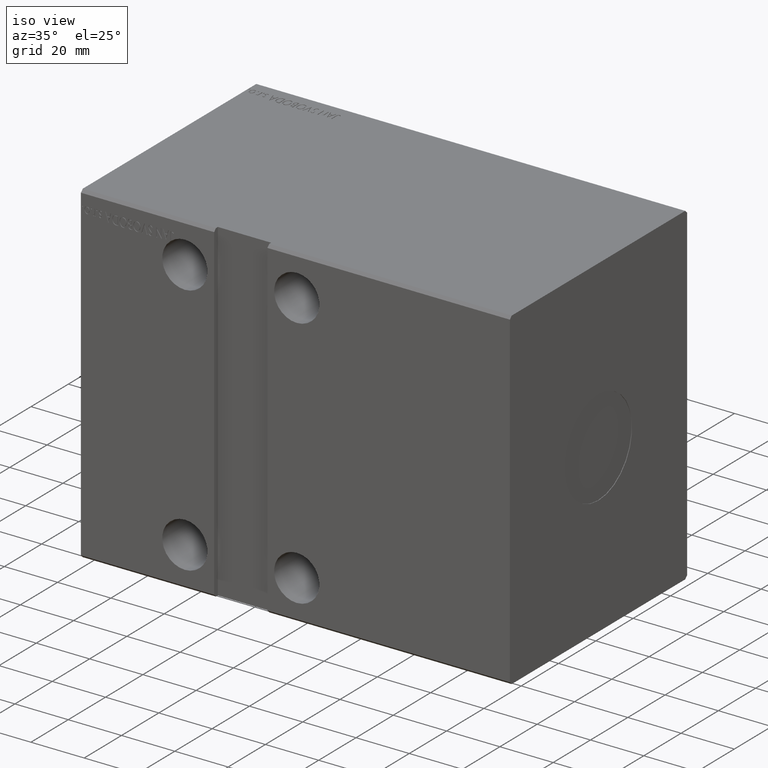
[diagram: clean part render]
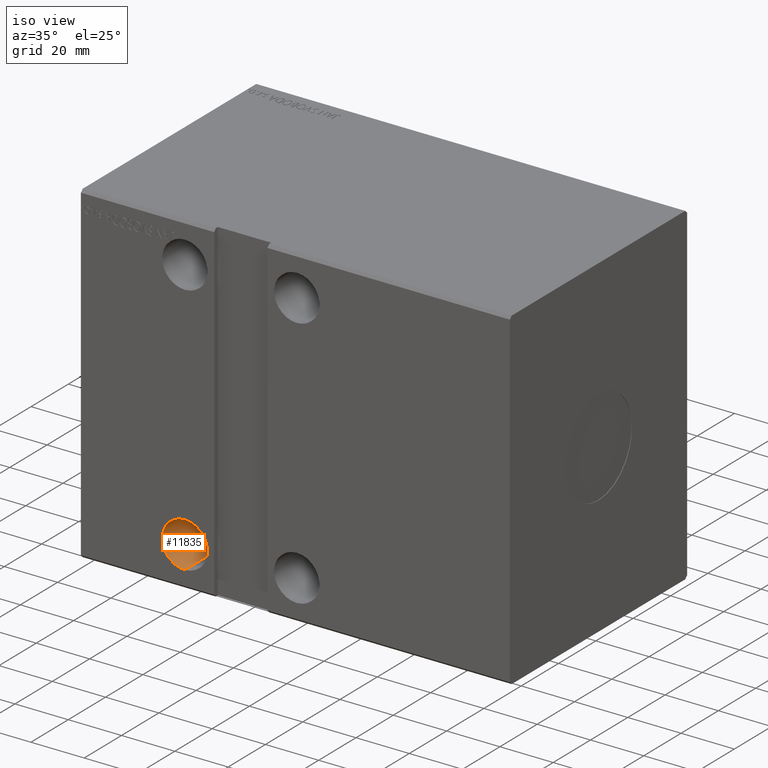
[diagram: same view with one face highlighted and labeled with its STEP entity id]
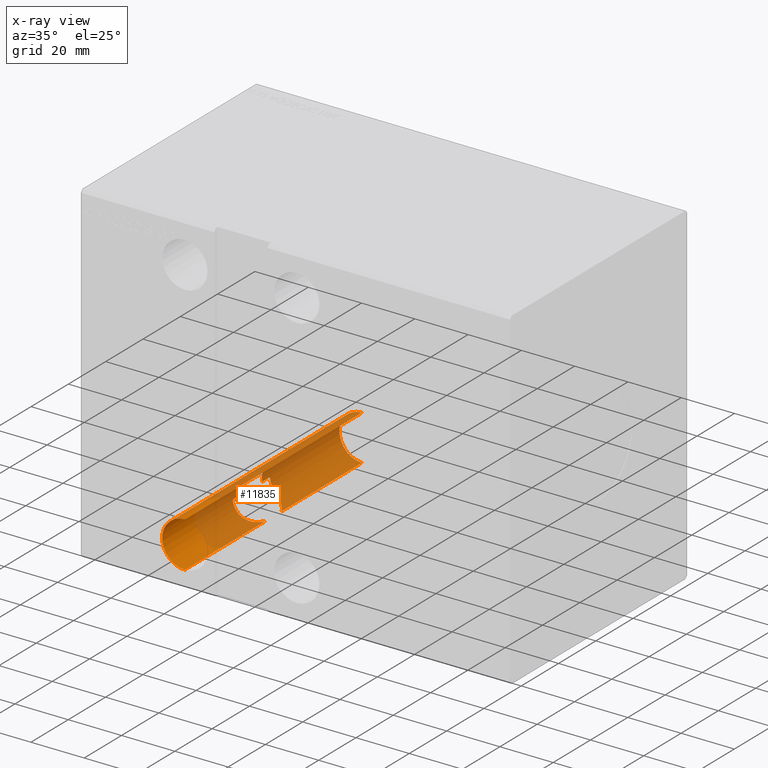
[diagram: x-ray of the same camera — body ghosted, the highlighted face saturated]
A machine part, iso view. The second image highlights one B-rep face of the part: STEP entity #11835.
The next image is the same camera in x-ray: the body ghosted, the highlighted face saturated — about 77% of this face is hidden behind the body in this view.
In plain terms, the highlighted cylindrical surface (edge-blend (fillet) strip) has radius 8.5 mm, axis along (-0, -1, -0).
Its self-contained STEP definition (entity closure, byte-faithful):
#45 = EDGE_CURVE ( 'NONE', #15501, #38048, #5782, .T. ) ;
#175 = EDGE_LOOP ( 'NONE', ( #24138, #18576, #36243, #7452, #17315, #29834, #35391, #37242, #25189, #39343, #6053, #37631, #9042, #5749, #25485, #35063 ) ) ;
#282 = CARTESIAN_POINT ( 'NONE',  ( 39.00000000000000000, 47.50000000000004974, -56.00000000000000711 ) ) ;
#477 = VECTOR ( 'NONE', #5116, 1000.000000000000000 ) ;
#655 = CARTESIAN_POINT ( 'NONE',  ( 38.87170545002123845, 4.623794038555425701, -56.00000000000002132 ) ) ;
#690 = VECTOR ( 'NONE', #2626, 1000.000000000000000 ) ;
#868 = CARTESIAN_POINT ( 'NONE',  ( 32.15692849739236436, 9.769885181859274681, -52.57588634820668005 ) ) ;
#1071 = CARTESIAN_POINT ( 'NONE',  ( 33.77371553925127046, 9.263529595052725440, -54.20937977146117248 ) ) ;
#1283 = DIRECTION ( 'NONE',  ( -1.000000000000000000, 1.711865943116876783E-12, -9.796085511398435237E-15 ) ) ;
#1476 = CARTESIAN_POINT ( 'NONE',  ( 37.74320656318089107, 6.355311599005677436, -55.91378988552973794 ) ) ;
#1490 = CARTESIAN_POINT ( 'NONE',  ( 33.38882090641415346, -4.961734391952984602, -41.10684620166075121 ) ) ;
#1857 = EDGE_CURVE ( 'NONE', #37039, #34325, #37964, .T. ) ;
#2384 = CARTESIAN_POINT ( 'NONE',  ( 31.52845968144534794, -9.887817085553944452, -51.59560381383277416 ) ) ;
#2626 = DIRECTION ( 'NONE',  ( 0.000000000000000000, 1.000000000000000000, 5.507058653894625237E-17 ) ) ;
#2748 = VECTOR ( 'NONE', #30464, 1000.000000000000000 ) ;
#2800 = CARTESIAN_POINT ( 'NONE',  ( 30.94923957173656603, -9.955404104109462082, -50.24271557784945230 ) ) ;
#3213 = CARTESIAN_POINT ( 'NONE',  ( 36.53107924980034937, -7.594825299637755656, -55.64488634122478317 ) ) ;
#3545 = VECTOR ( 'NONE', #35158, 1000.000000000000000 ) ;
#3574 = CIRCLE ( 'NONE', #12409, 8.500000000000000000 ) ;
#4698 = CARTESIAN_POINT ( 'NONE',  ( 31.40411672522466802, 5.836461716203959149, -43.66701326177878428 ) ) ;
#5116 = DIRECTION ( 'NONE',  ( -0.000000000000000000, -1.000000000000000000, -5.507058653894625237E-17 ) ) ;
#5117 = CARTESIAN_POINT ( 'NONE',  ( 32.63944982964834196, -5.395603477058164898, -41.85025885231726051 ) ) ;
#5301 = CARTESIAN_POINT ( 'NONE',  ( 30.59999999999999432, 9.981983770774229825, -48.79999999999999716 ) ) ;
#5333 = CARTESIAN_POINT ( 'NONE',  ( 31.97166358482107640, 5.671764670457853263, -42.70534823954832149 ) ) ;
#5749 = ORIENTED_EDGE ( 'NONE', *, *, #24759, .F. ) ;
#5754 = VERTEX_POINT ( 'NONE', #39921 ) ;
#5782 = B_SPLINE_CURVE_WITH_KNOTS ( 'NONE', 3,
 ( #25220, #31813, #41623, #35651, #32022, #38852, #28412, #3213, #16227, #18599, #6207, #29041, #35438, #22228, #25432, #42034, #31616, #22020, #5791, #2384, #12795, #2800, #25843, #35229, #41411, #9180 ),
 .UNSPECIFIED., .F., .F.,
 ( 4, 2, 2, 2, 2, 2, 2, 2, 2, 2, 2, 2, 4 ),
 ( 0.02307086421802710327, 0.02483002273668007132, 0.02570960199600655013, 0.02658918125533302895, 0.02834833977398599006, 0.02922791903331246888, 0.03010749829263894423, 0.03186665681129188105, 0.03274623607061834946, 0.03362581532994481787, 0.03538497384859776163, 0.03626455310792423697, 0.03714413236725071232 ),
 .UNSPECIFIED. ) ;
#5791 = CARTESIAN_POINT ( 'NONE',  ( 32.00641488904818743, -9.797988478345946106, -52.34011762551186564 ) ) ;
#6053 = ORIENTED_EDGE ( 'NONE', *, *, #39404, .T. ) ;
#6207 = CARTESIAN_POINT ( 'NONE',  ( 35.15983035888674380, -8.570100558497525611, -55.08764339884697847 ) ) ;
#6841 = EDGE_CURVE ( 'NONE', #39155, #27417, #16623, .T. ) ;
#7032 = EDGE_CURVE ( 'NONE', #25602, #19273, #15271, .T. ) ;
#7262 = CARTESIAN_POINT ( 'NONE',  ( 39.00000000000000000, 47.29999999999083826, -47.50000000000000711 ) ) ;
#7391 = AXIS2_PLACEMENT_3D ( 'NONE', #20816, #30003, #27217 ) ;
#7428 = DIRECTION ( 'NONE',  ( 0.000000000000000000, -1.000000000000000000, -1.692413147294446216E-16 ) ) ;
#7452 = ORIENTED_EDGE ( 'NONE', *, *, #8179, .F. ) ;
#7520 = EDGE_CURVE ( 'NONE', #25602, #19751, #32952, .T. ) ;
#7678 = CARTESIAN_POINT ( 'NONE',  ( 31.76167877713873722, -5.738678845913305793, -43.02814889442576174 ) ) ;
#7771 = AXIS2_PLACEMENT_3D ( 'NONE', #41124, #27488, #40494 ) ;
#7890 = CARTESIAN_POINT ( 'NONE',  ( 31.76921171331549587, 5.736350674099115032, -43.01614777088524733 ) ) ;
#8179 = EDGE_CURVE ( 'NONE', #15501, #27417, #16946, .T. ) ;
#8718 = CARTESIAN_POINT ( 'NONE',  ( 30.59999999999999432, 47.50000000000004974, -48.79999999999999716 ) ) ;
#8901 = LINE ( 'NONE', #22362, #3545 ) ;
#9042 = ORIENTED_EDGE ( 'NONE', *, *, #7032, .T. ) ;
#9180 = CARTESIAN_POINT ( 'NONE',  ( 30.59999999999999432, -9.981983770774222720, -48.79999999999999716 ) ) ;
#9979 = DIRECTION ( 'NONE',  ( -0.000000000000000000, 1.000000000000000000, 5.507058653894625853E-17 ) ) ;
#9987 = B_SPLINE_CURVE_WITH_KNOTS ( 'NONE', 3,
 ( #10021, #23061, #36069, #32871, #26479, #20704, #36499, #868, #29873, #17286, #30302, #1071, #26696, #24313, #40319, #11061, #14067, #20902, #33082, #40108, #1476, #39910, #27518, #40525, #655, #14277 ),
 .UNSPECIFIED., .F., .F.,
 ( 4, 2, 2, 2, 2, 2, 2, 2, 2, 2, 2, 2, 4 ),
 ( 0.000000000000000000, 0.001760962577507895052, 0.002641443866261842469, 0.003521925155015790104, 0.005282887732523684071, 0.006163369021277616960, 0.007043850310031550717, 0.007924331598785482739, 0.008804812887539417363, 0.01056577546504729875, 0.01232673804255518188, 0.01320721933130911824, 0.01408770062006305113 ),
 .UNSPECIFIED. ) ;
#10021 = CARTESIAN_POINT ( 'NONE',  ( 30.59999999999999432, 9.981983770774229825, -48.79999999999999716 ) ) ;
#10243 = EDGE_CURVE ( 'NONE', #32803, #38993, #42042, .T. ) ;
#10614 = CARTESIAN_POINT ( 'NONE',  ( 39.00000000000000000, -47.49999999999999289, -47.50000000000001421 ) ) ;
#10814 = DIRECTION ( 'NONE',  ( 0.000000000000000000, 0.000000000000000000, 1.000000000000000000 ) ) ;
#11061 = CARTESIAN_POINT ( 'NONE',  ( 35.14454366590939571, 8.579348604038525394, -55.07997949603070964 ) ) ;
#11072 = CARTESIAN_POINT ( 'NONE',  ( 31.39584719526837375, -5.838455071148131559, -43.68324659454642500 ) ) ;
#11281 = CARTESIAN_POINT ( 'NONE',  ( 32.40496308468859610, -5.501952980806942506, -42.12507820701100769 ) ) ;
#11290 = CARTESIAN_POINT ( 'NONE',  ( 30.46873934980113674, 5.982270938527081583, -47.29822189607233440 ) ) ;
#11489 = CARTESIAN_POINT ( 'NONE',  ( 31.96683178992137897, -5.673350575443048882, -42.71263735196427547 ) ) ;
#11706 = CARTESIAN_POINT ( 'NONE',  ( 30.84525463552801838, -5.940881350957926799, -45.07247602567348821 ) ) ;
#11835 = ADVANCED_FACE ( 'NONE', ( #29789 ), #37030, .F. ) ;
#12016 = CARTESIAN_POINT ( 'NONE',  ( 33.56410256410256920, 47.50000000000004974, -54.03460167618531074 ) ) ;
#12182 = CARTESIAN_POINT ( 'NONE',  ( 33.64369530366317207, 47.50000000000004974, -40.89999999999999858 ) ) ;
#12409 = AXIS2_PLACEMENT_3D ( 'NONE', #23239, #9979, #13397 ) ;
#12421 = EDGE_CURVE ( 'NONE', #37869, #34325, #26201, .T. ) ;
#12795 = CARTESIAN_POINT ( 'NONE',  ( 31.26392514949693435, -9.922046148811741517, -51.07100472759360343 ) ) ;
#13397 = DIRECTION ( 'NONE',  ( 0.000000000000000000, 0.000000000000000000, 1.000000000000000000 ) ) ;
#13518 = CARTESIAN_POINT ( 'NONE',  ( 39.00000000000000000, 47.50000000000004974, -56.00000000000000711 ) ) ;
#13519 = CARTESIAN_POINT ( 'NONE',  ( 39.00000000000000000, 47.50000000000004974, -56.00000000000000711 ) ) ;
#14067 = CARTESIAN_POINT ( 'NONE',  ( 35.37944762841576818, 8.434364777069353281, -55.19443532615805026 ) ) ;
#14277 = CARTESIAN_POINT ( 'NONE',  ( 39.00000000000000000, 4.358898943540671311, -56.00000000000001421 ) ) ;
#14534 = EDGE_CURVE ( 'NONE', #38993, #5754, #35385, .T. ) ;
#14545 = EDGE_CURVE ( 'NONE', #28105, #16324, #30191, .T. ) ;
#15271 = CIRCLE ( 'NONE', #7771, 8.500000000000000000 ) ;
#15501 = VERTEX_POINT ( 'NONE', #30043 ) ;
#15600 = EDGE_CURVE ( 'NONE', #37869, #16324, #28430, .T. ) ;
#16227 = CARTESIAN_POINT ( 'NONE',  ( 36.08776279613109494, -7.953160463035766625, -55.50146269132537213 ) ) ;
#16324 = VERTEX_POINT ( 'NONE', #20570 ) ;
#16623 = CIRCLE ( 'NONE', #25503, 8.500000000000007105 ) ;
#16946 = LINE ( 'NONE', #13519, #41765 ) ;
#17286 = CARTESIAN_POINT ( 'NONE',  ( 33.12644074666648919, 9.501065586479681357, -53.65103507446698217 ) ) ;
#17315 = ORIENTED_EDGE ( 'NONE', *, *, #45, .T. ) ;
#17716 = CARTESIAN_POINT ( 'NONE',  ( 33.38916822051230326, 4.961468914892132709, -41.10656433497364048 ) ) ;
#17929 = CARTESIAN_POINT ( 'NONE',  ( 30.59619647044125657, 5.970458132223424030, -46.16982448233692793 ) ) ;
#18345 = CARTESIAN_POINT ( 'NONE',  ( 30.84683925524878845, 5.940652871136325786, -45.06747533536751149 ) ) ;
#18576 = ORIENTED_EDGE ( 'NONE', *, *, #31665, .T. ) ;
#18599 = CARTESIAN_POINT ( 'NONE',  ( 35.39321878479950101, -8.425651039680792209, -55.20095850844196406 ) ) ;
#18852 = CARTESIAN_POINT ( 'NONE',  ( 39.00000000000000000, -47.49999999999999289, -56.00000000000002132 ) ) ;
#19273 = VERTEX_POINT ( 'NONE', #25782 ) ;
#19583 = CARTESIAN_POINT ( 'NONE',  ( 30.59999999999999432, -5.969924622639714684, -48.79999999999999716 ) ) ;
#19751 = VERTEX_POINT ( 'NONE', #37212 ) ;
#20288 = DIRECTION ( 'NONE',  ( -1.711874210006961910E-12, -1.000000000000000000, 8.106832115813578724E-16 ) ) ;
#20570 = CARTESIAN_POINT ( 'NONE',  ( 33.64369530366317207, -4.766915620614956772, -40.89999999999999858 ) ) ;
#20704 = CARTESIAN_POINT ( 'NONE',  ( 31.53712670968115361, 9.882068688983837390, -51.57962236978799098 ) ) ;
#20724 = CARTESIAN_POINT ( 'NONE',  ( 30.59999999999999432, 5.969924622639721790, -48.79999999999999716 ) ) ;
#20745 = VECTOR ( 'NONE', #38444, 1000.000000000000000 ) ;
#20816 = CARTESIAN_POINT ( 'NONE',  ( 39.00000000000000000, 47.50000000000004974, -47.50000000000000711 ) ) ;
#20902 = CARTESIAN_POINT ( 'NONE',  ( 36.06847352516437866, 7.967527407704582565, -55.49419103991082380 ) ) ;
#20916 = CARTESIAN_POINT ( 'NONE',  ( 33.64369530366317207, -4.766915620614956772, -40.89999999999999858 ) ) ;
#21340 = CARTESIAN_POINT ( 'NONE',  ( 30.46926222478347412, -5.982209906410909994, -47.29986627626348650 ) ) ;
#21349 = CARTESIAN_POINT ( 'NONE',  ( 32.65053109932421194, 5.389986891803149938, -41.83813077685925208 ) ) ;
#21973 = VECTOR ( 'NONE', #39279, 1000.000000000000000 ) ;
#22020 = CARTESIAN_POINT ( 'NONE',  ( 32.17934955938257957, -9.761433448746924313, -52.58072966647923607 ) ) ;
#22228 = CARTESIAN_POINT ( 'NONE',  ( 33.78803304315189848, -9.268313509388157456, -54.23683853591020920 ) ) ;
#22362 = CARTESIAN_POINT ( 'NONE',  ( 30.59999999999999432, 47.50000000000004974, -48.79999999999999716 ) ) ;
#22669 = DIRECTION ( 'NONE',  ( -0.000000000000000000, -1.000000000000000000, -5.507058653894625237E-17 ) ) ;
#23061 = CARTESIAN_POINT ( 'NONE',  ( 30.69100431382613436, 9.976513656862048052, -49.38802787395352567 ) ) ;
#23239 = CARTESIAN_POINT ( 'NONE',  ( 39.00000000000000000, 47.50000000000004974, -47.50000000000000711 ) ) ;
#24138 = ORIENTED_EDGE ( 'NONE', *, *, #38882, .T. ) ;
#24277 = LINE ( 'NONE', #41120, #2748 ) ;
#24313 = CARTESIAN_POINT ( 'NONE',  ( 34.44833454063980582, 8.959608674058475941, -54.68381121597265349 ) ) ;
#24336 = CARTESIAN_POINT ( 'NONE',  ( 33.13754618783097783, 5.121823671459408978, -41.33524909499319477 ) ) ;
#24759 = EDGE_CURVE ( 'NONE', #5754, #19273, #38678, .T. ) ;
#24770 = CARTESIAN_POINT ( 'NONE',  ( 31.24057408571679062, 5.872055843412143261, -44.00953291817685198 ) ) ;
#25189 = ORIENTED_EDGE ( 'NONE', *, *, #12421, .T. ) ;
#25220 = CARTESIAN_POINT ( 'NONE',  ( 39.00000000000000000, -4.358898943540671311, -56.00000000000001421 ) ) ;
#25432 = CARTESIAN_POINT ( 'NONE',  ( 33.34129035078130698, -9.434722364792975213, -53.86870460791340776 ) ) ;
#25485 = ORIENTED_EDGE ( 'NONE', *, *, #14534, .F. ) ;
#25503 = AXIS2_PLACEMENT_3D ( 'NONE', #10614, #7428, #10814 ) ;
#25602 = VERTEX_POINT ( 'NONE', #282 ) ;
#25782 = CARTESIAN_POINT ( 'NONE',  ( 33.83333333333333570, 47.50000000000004974, -54.24948557710554553 ) ) ;
#25843 = CARTESIAN_POINT ( 'NONE',  ( 30.85793584449883653, -9.963419724894674090, -49.95863734522340849 ) ) ;
#26201 = B_SPLINE_CURVE_WITH_KNOTS ( 'NONE', 3,
 ( #30949, #17716, #24336, #21349, #37140, #5333, #7890, #4698, #24770, #30734, #18345, #31150, #17929, #11290, #27540, #20724 ),
 .UNSPECIFIED., .F., .F.,
 ( 4, 2, 2, 2, 2, 2, 2, 4 ),
 ( 0.000000000000000000, 0.001124307586931943539, 0.002248615173863887078, 0.003372922760795830401, 0.004497230347727774157, 0.005621537934659717045, 0.006745845521591660801, 0.008994460695455527496 ),
 .UNSPECIFIED. ) ;
#26479 = CARTESIAN_POINT ( 'NONE',  ( 31.27116119885892687, 9.919787764963803767, -51.05004890295968067 ) ) ;
#26696 = CARTESIAN_POINT ( 'NONE',  ( 33.99592907447217272, 9.170322710215874196, -54.37634177546127034 ) ) ;
#26747 = CARTESIAN_POINT ( 'NONE',  ( 39.00000000000000000, -47.49999999999999289, -39.00000000000000711 ) ) ;
#26862 = CARTESIAN_POINT ( 'NONE',  ( 33.56410256410256920, 47.30000000000013927, -54.03460167618531074 ) ) ;
#27217 = DIRECTION ( 'NONE',  ( 0.000000000000000000, 0.000000000000000000, -1.000000000000000000 ) ) ;
#27417 = VERTEX_POINT ( 'NONE', #18852 ) ;
#27488 = DIRECTION ( 'NONE',  ( -0.000000000000000000, 1.000000000000000000, 5.507058653894625853E-17 ) ) ;
#27518 = CARTESIAN_POINT ( 'NONE',  ( 38.42693981004506298, 5.392082746831222018, -55.98203124148931664 ) ) ;
#27540 = CARTESIAN_POINT ( 'NONE',  ( 30.48386250087301974, 5.981596880478948997, -48.04957308256413029 ) ) ;
#27737 = CARTESIAN_POINT ( 'NONE',  ( 30.96031948630237451, -5.924304952241004507, -44.71556004937495032 ) ) ;
#28105 = VERTEX_POINT ( 'NONE', #19583 ) ;
#28412 = CARTESIAN_POINT ( 'NONE',  ( 37.15673997016223495, -6.990362284909132917, -55.80051674644187187 ) ) ;
#28430 = LINE ( 'NONE', #12182, #36091 ) ;
#29041 = CARTESIAN_POINT ( 'NONE',  ( 34.69786697099947759, -8.831790239698920075, -54.83559040714357025 ) ) ;
#29789 = FACE_OUTER_BOUND ( 'NONE', #175, .T. ) ;
#29834 = ORIENTED_EDGE ( 'NONE', *, *, #36384, .F. ) ;
#29848 = CARTESIAN_POINT ( 'NONE',  ( 33.56410256410256920, 47.50000000000004974, -54.03460167618531074 ) ) ;
#29873 = CARTESIAN_POINT ( 'NONE',  ( 32.51867336359900662, 9.686888074687177053, -53.02974937870150285 ) ) ;
#30003 = DIRECTION ( 'NONE',  ( -0.000000000000000000, -1.000000000000000000, -5.507058653894625237E-17 ) ) ;
#30043 = CARTESIAN_POINT ( 'NONE',  ( 39.00000000000000000, -4.358898943540671311, -56.00000000000001421 ) ) ;
#30176 = DIRECTION ( 'NONE',  ( -0.000000000000000000, -1.000000000000000000, -5.507058653894625237E-17 ) ) ;
#30191 = B_SPLINE_CURVE_WITH_KNOTS ( 'NONE', 3,
 ( #30939, #40745, #21340, #34337, #40955, #11706, #27737, #40536, #11072, #7678, #11489, #11281, #5117, #33715, #1490, #20916 ),
 .UNSPECIFIED., .F., .F.,
 ( 4, 2, 2, 2, 2, 2, 2, 4 ),
 ( 0.000000000000000000, 0.002244063925721516070, 0.003366095888582274105, 0.004488127851443032140, 0.005610159814303790175, 0.006732191777164548210, 0.007854223740025305378, 0.008976255702886064280 ),
 .UNSPECIFIED. ) ;
#30302 = CARTESIAN_POINT ( 'NONE',  ( 33.33971157529201434, 9.428692174605386001, -53.84751613873277876 ) ) ;
#30464 = DIRECTION ( 'NONE',  ( -0.000000000000000000, -1.000000000000000000, -5.507058653894625237E-17 ) ) ;
#30734 = CARTESIAN_POINT ( 'NONE',  ( 30.96209331886046101, 5.924056071316922356, -44.70999871795138603 ) ) ;
#30939 = CARTESIAN_POINT ( 'NONE',  ( 30.59999999999999432, -5.969924622639714684, -48.79999999999999716 ) ) ;
#30949 = CARTESIAN_POINT ( 'NONE',  ( 33.64369530366317207, 4.766915620614963878, -40.89999999999999858 ) ) ;
#31150 = CARTESIAN_POINT ( 'NONE',  ( 30.66398817224715145, 5.963858898958495303, -45.79644102498255620 ) ) ;
#31616 = CARTESIAN_POINT ( 'NONE',  ( 32.54369760221950258, -9.672887365453970432, -53.03635671948175201 ) ) ;
#31665 = EDGE_CURVE ( 'NONE', #38217, #39155, #24277, .T. ) ;
#31813 = CARTESIAN_POINT ( 'NONE',  ( 38.74317640134071894, -4.889173312795941584, -56.00000000000001421 ) ) ;
#32022 = CARTESIAN_POINT ( 'NONE',  ( 37.74585918247211680, -6.331541631096998302, -55.90925135592190998 ) ) ;
#32062 = CARTESIAN_POINT ( 'NONE',  ( 33.83333333333333570, 47.50000000000004974, -54.24948557710554553 ) ) ;
#32803 = VERTEX_POINT ( 'NONE', #29848 ) ;
#32871 = CARTESIAN_POINT ( 'NONE',  ( 31.15295483905615015, 9.933860892783803465, -50.78025526861951988 ) ) ;
#32874 = CARTESIAN_POINT ( 'NONE',  ( 30.59999999999999432, -9.981983770774222720, -48.79999999999999716 ) ) ;
#32952 = LINE ( 'NONE', #13518, #20745 ) ;
#33082 = CARTESIAN_POINT ( 'NONE',  ( 36.51426552874699638, 7.609691819491559706, -55.64004239882048353 ) ) ;
#33715 = CARTESIAN_POINT ( 'NONE',  ( 33.13300088577840796, -5.124796360303953691, -41.33927805374217712 ) ) ;
#33803 = CARTESIAN_POINT ( 'NONE',  ( 39.00000000000000000, 47.50000000000004974, -39.00000000000000711 ) ) ;
#34325 = VERTEX_POINT ( 'NONE', #38820 ) ;
#34337 = CARTESIAN_POINT ( 'NONE',  ( 30.59460528855274219, -5.970611790329150459, -46.18082417055378386 ) ) ;
#34710 = AXIS2_PLACEMENT_3D ( 'NONE', #7262, #20288, #1283 ) ;
#35063 = ORIENTED_EDGE ( 'NONE', *, *, #10243, .F. ) ;
#35158 = DIRECTION ( 'NONE',  ( -0.000000000000000000, -1.000000000000000000, -5.507058653894625237E-17 ) ) ;
#35229 = CARTESIAN_POINT ( 'NONE',  ( 30.70626339908879743, -9.975318468039191089, -49.38468551815150676 ) ) ;
#35385 = CIRCLE ( 'NONE', #34710, 8.500000000000003553 ) ;
#35391 = ORIENTED_EDGE ( 'NONE', *, *, #14545, .T. ) ;
#35438 = CARTESIAN_POINT ( 'NONE',  ( 34.46835030947303125, -8.949667754889651050, -54.69646088969413711 ) ) ;
#35651 = CARTESIAN_POINT ( 'NONE',  ( 37.92805418058513567, -6.101760828719107188, -55.93390094335405394 ) ) ;
#36069 = CARTESIAN_POINT ( 'NONE',  ( 30.84151562341963171, 9.966716603168274347, -49.95640025604281931 ) ) ;
#36091 = VECTOR ( 'NONE', #22669, 1000.000000000000000 ) ;
#36243 = ORIENTED_EDGE ( 'NONE', *, *, #6841, .T. ) ;
#36384 = EDGE_CURVE ( 'NONE', #28105, #38048, #8901, .T. ) ;
#36499 = CARTESIAN_POINT ( 'NONE',  ( 31.68376394038466870, 9.858533777669711284, -51.83684820721363451 ) ) ;
#37030 = CYLINDRICAL_SURFACE ( 'NONE', #7391, 8.500000000000000000 ) ;
#37039 = VERTEX_POINT ( 'NONE', #5301 ) ;
#37140 = CARTESIAN_POINT ( 'NONE',  ( 32.41367410180304631, 5.498231451935126302, -42.11423084121938132 ) ) ;
#37212 = CARTESIAN_POINT ( 'NONE',  ( 39.00000000000000000, 4.358898943540671311, -56.00000000000001421 ) ) ;
#37242 = ORIENTED_EDGE ( 'NONE', *, *, #15600, .F. ) ;
#37631 = ORIENTED_EDGE ( 'NONE', *, *, #7520, .F. ) ;
#37869 = VERTEX_POINT ( 'NONE', #40167 ) ;
#37964 = LINE ( 'NONE', #8718, #477 ) ;
#38048 = VERTEX_POINT ( 'NONE', #32874 ) ;
#38217 = VERTEX_POINT ( 'NONE', #33803 ) ;
#38444 = DIRECTION ( 'NONE',  ( -0.000000000000000000, -1.000000000000000000, -5.507058653894625237E-17 ) ) ;
#38678 = LINE ( 'NONE', #32062, #690 ) ;
#38820 = CARTESIAN_POINT ( 'NONE',  ( 30.59999999999999432, 5.969924622639721790, -48.79999999999999716 ) ) ;
#38852 = CARTESIAN_POINT ( 'NONE',  ( 37.35977580825999667, -6.776463233365386252, -55.84254410585254647 ) ) ;
#38882 = EDGE_CURVE ( 'NONE', #32803, #38217, #3574, .T. ) ;
#38993 = VERTEX_POINT ( 'NONE', #26862 ) ;
#39155 = VERTEX_POINT ( 'NONE', #26747 ) ;
#39279 = DIRECTION ( 'NONE',  ( -0.000000000000000000, -1.000000000000000000, -5.507058653894625237E-17 ) ) ;
#39343 = ORIENTED_EDGE ( 'NONE', *, *, #1857, .F. ) ;
#39404 = EDGE_CURVE ( 'NONE', #37039, #19751, #9987, .T. ) ;
#39910 = CARTESIAN_POINT ( 'NONE',  ( 38.26281633838591034, 5.640272556201415100, -55.96976432636811438 ) ) ;
#39921 = CARTESIAN_POINT ( 'NONE',  ( 33.83333333333333570, 47.29999999999968452, -54.24948557710554553 ) ) ;
#40108 = CARTESIAN_POINT ( 'NONE',  ( 37.35810020544860066, 6.797163109212205789, -55.85124728294056951 ) ) ;
#40167 = CARTESIAN_POINT ( 'NONE',  ( 33.64369530366317207, 4.766915620614963878, -40.89999999999999858 ) ) ;
#40319 = CARTESIAN_POINT ( 'NONE',  ( 34.67853353811608486, 8.842108115873125840, -54.82431295912034130 ) ) ;
#40494 = DIRECTION ( 'NONE',  ( 0.000000000000000000, 0.000000000000000000, 1.000000000000000000 ) ) ;
#40525 = CARTESIAN_POINT ( 'NONE',  ( 38.73153781897034520, 4.883453514336742352, -55.99712775120326569 ) ) ;
#40536 = CARTESIAN_POINT ( 'NONE',  ( 31.23561024664024188, -5.873063085078944034, -44.02094547917281631 ) ) ;
#40745 = CARTESIAN_POINT ( 'NONE',  ( 30.48370412970513854, -5.981612797380195801, -48.04854976117170651 ) ) ;
#40955 = CARTESIAN_POINT ( 'NONE',  ( 30.66203784640581276, -5.964078513481159582, -45.80555857860523616 ) ) ;
#41120 = CARTESIAN_POINT ( 'NONE',  ( 39.00000000000000000, 47.50000000000004974, -39.00000000000000711 ) ) ;
#41124 = CARTESIAN_POINT ( 'NONE',  ( 39.00000000000000000, 47.50000000000004974, -47.50000000000000711 ) ) ;
#41411 = CARTESIAN_POINT ( 'NONE',  ( 30.64552116863608688, -9.979247571055921640, -49.09413678195627995 ) ) ;
#41623 = CARTESIAN_POINT ( 'NONE',  ( 38.44261394689602440, -5.391139299666956930, -55.98871796186460870 ) ) ;
#41765 = VECTOR ( 'NONE', #30176, 1000.000000000000000 ) ;
#42034 = CARTESIAN_POINT ( 'NONE',  ( 32.73601271157285453, -9.620747698040359452, -53.25285247244162434 ) ) ;
#42042 = LINE ( 'NONE', #12016, #21973 ) ;